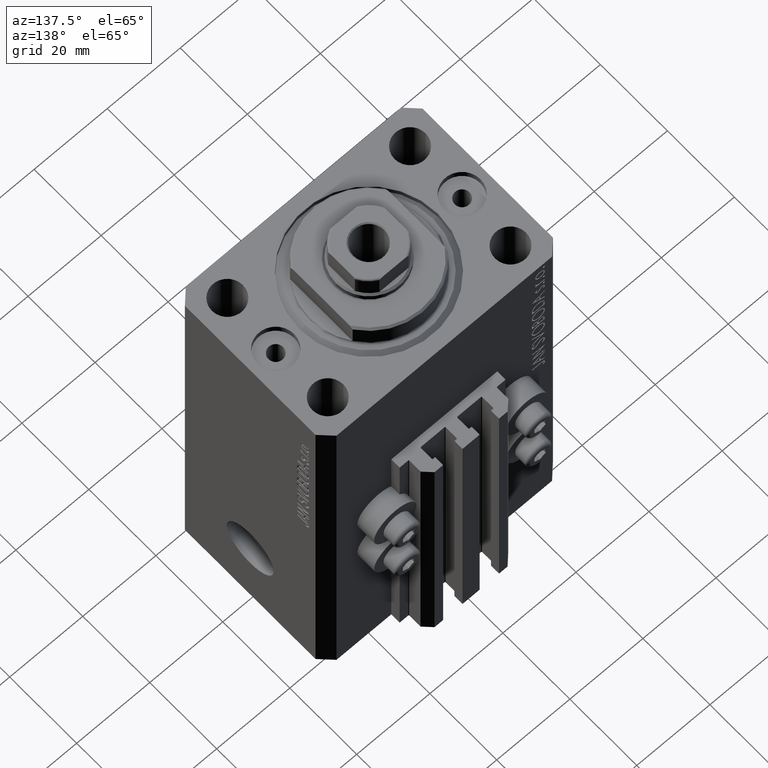
[diagram: clean part render]
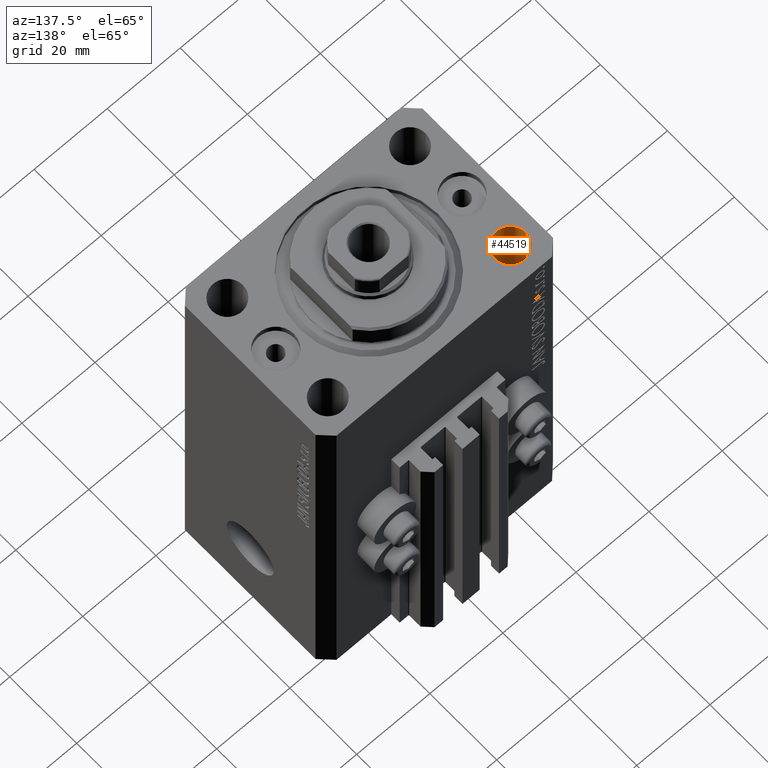
[diagram: same view with one face highlighted and labeled with its STEP entity id]
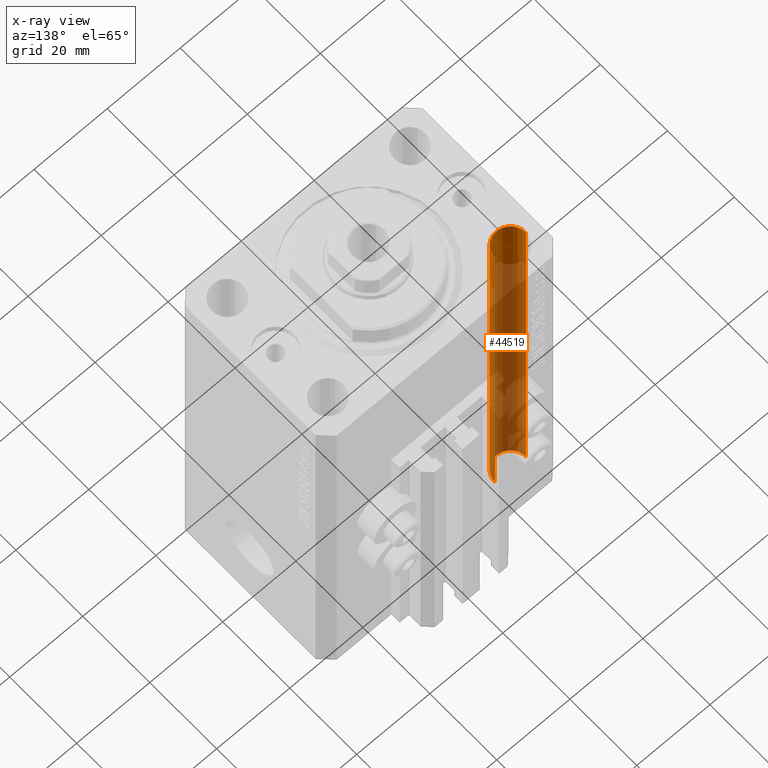
[diagram: x-ray of the same camera — body ghosted, the highlighted face saturated]
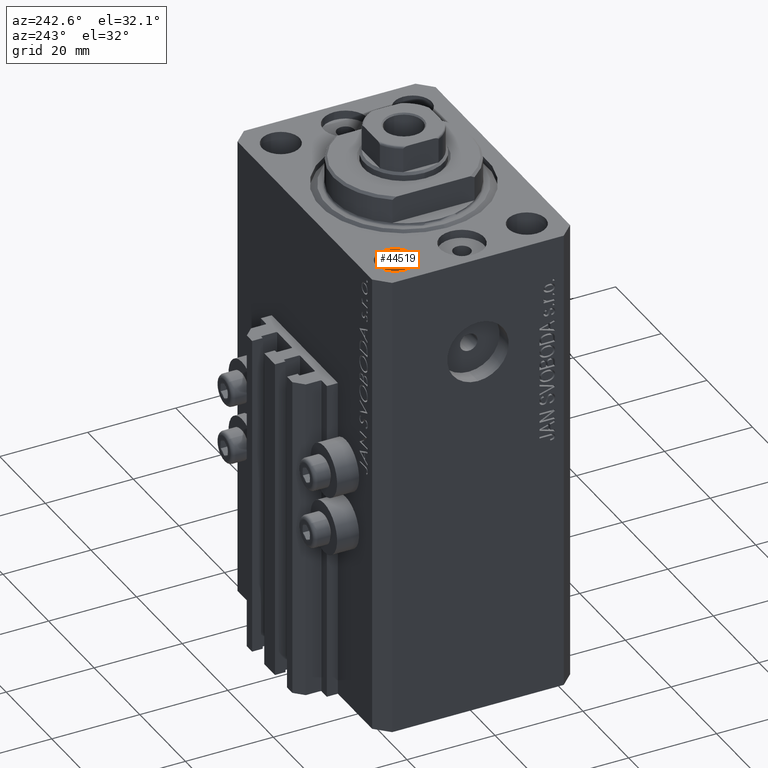
[diagram: same view with one face highlighted and labeled with its STEP entity id]
A machine part, auxiliary view. The second image highlights one B-rep face of the part: STEP entity #44519.
The next image is the same camera in x-ray: the body ghosted, the highlighted face saturated — about 84% of this face is hidden behind the body in this view.
A second angle (auxiliary view) of the same face is appended — the face is thin or edge-on in the first view.
In plain terms, the highlighted cylindrical surface (edge-blend (fillet) strip) has radius 4.25 mm, axis along (0, 0, 1).
Its self-contained STEP definition (entity closure, byte-faithful):
#1006 = EDGE_CURVE ( 'NONE', #34519, #28430, #6546, .T. ) ;
#1084 = CARTESIAN_POINT ( 'NONE',  ( -29.25000000002137668, 14.99999999999999645, 0.000000000000000000 ) ) ;
#2441 = CARTESIAN_POINT ( 'NONE',  ( -20.74999999997862687, 14.99999999999999645, -107.0000000000000000 ) ) ;
#4800 = CARTESIAN_POINT ( 'NONE',  ( -29.25000000002137668, 14.99999999999999645, -107.0000000000000000 ) ) ;
#6546 = CIRCLE ( 'NONE', #33222, 4.250000000021375790 ) ;
#7532 = DIRECTION ( 'NONE',  ( -0.000000000000000000, -0.000000000000000000, 1.000000000000000000 ) ) ;
#9861 = EDGE_CURVE ( 'NONE', #34519, #28473, #20807, .T. ) ;
#11102 = CARTESIAN_POINT ( 'NONE',  ( -29.25000000002137668, 14.99999999999999645, -119.0208152802854897 ) ) ;
#12056 = VECTOR ( 'NONE', #17949, 1000.000000000000000 ) ;
#12828 = DIRECTION ( 'NONE',  ( 1.000000000000000000, 0.000000000000000000, 0.000000000000000000 ) ) ;
#13162 = AXIS2_PLACEMENT_3D ( 'NONE', #17107, #14010, #24732 ) ;
#14010 = DIRECTION ( 'NONE',  ( -0.000000000000000000, -0.000000000000000000, 1.000000000000000000 ) ) ;
#14134 = CARTESIAN_POINT ( 'NONE',  ( -20.74999999997862687, 14.99999999999999645, -119.0208152802854897 ) ) ;
#16451 = CARTESIAN_POINT ( 'NONE',  ( -20.74999999997862687, 14.99999999999999645, 0.000000000000000000 ) ) ;
#17107 = CARTESIAN_POINT ( 'NONE',  ( -25.00000000000000000, 14.99999999999999645, -119.0208152802854897 ) ) ;
#17949 = DIRECTION ( 'NONE',  ( -0.000000000000000000, -0.000000000000000000, 1.000000000000000000 ) ) ;
#20412 = EDGE_CURVE ( 'NONE', #23283, #28473, #39798, .T. ) ;
#20754 = ORIENTED_EDGE ( 'NONE', *, *, #9861, .F. ) ;
#20807 = LINE ( 'NONE', #14134, #12056 ) ;
#20924 = FACE_OUTER_BOUND ( 'NONE', #32849, .T. ) ;
#23283 = VERTEX_POINT ( 'NONE', #1084 ) ;
#24732 = DIRECTION ( 'NONE',  ( 1.000000000000000000, 0.000000000000000000, 0.000000000000000000 ) ) ;
#26266 = ORIENTED_EDGE ( 'NONE', *, *, #38090, .T. ) ;
#27827 = CARTESIAN_POINT ( 'NONE',  ( -25.00000000000000000, 14.99999999999999645, -107.0000000000000000 ) ) ;
#28307 = CYLINDRICAL_SURFACE ( 'NONE', #13162, 4.250000000021375790 ) ;
#28430 = VERTEX_POINT ( 'NONE', #4800 ) ;
#28473 = VERTEX_POINT ( 'NONE', #16451 ) ;
#29172 = DIRECTION ( 'NONE',  ( 1.000000000000000000, 0.000000000000000000, 0.000000000000000000 ) ) ;
#32606 = ORIENTED_EDGE ( 'NONE', *, *, #20412, .T. ) ;
#32849 = EDGE_LOOP ( 'NONE', ( #45574, #26266, #32606, #20754 ) ) ;
#33222 = AXIS2_PLACEMENT_3D ( 'NONE', #27827, #45545, #12828 ) ;
#33482 = CARTESIAN_POINT ( 'NONE',  ( -25.00000000000000000, 14.99999999999999645, 0.000000000000000000 ) ) ;
#34519 = VERTEX_POINT ( 'NONE', #2441 ) ;
#37091 = VECTOR ( 'NONE', #7532, 1000.000000000000000 ) ;
#38090 = EDGE_CURVE ( 'NONE', #28430, #23283, #44055, .T. ) ;
#39798 = CIRCLE ( 'NONE', #45891, 4.250000000021375790 ) ;
#44055 = LINE ( 'NONE', #11102, #37091 ) ;
#44519 = ADVANCED_FACE ( 'NONE', ( #20924 ), #28307, .F. ) ;
#44715 = DIRECTION ( 'NONE',  ( 0.000000000000000000, 0.000000000000000000, 1.000000000000000000 ) ) ;
#45545 = DIRECTION ( 'NONE',  ( -0.000000000000000000, -0.000000000000000000, -1.000000000000000000 ) ) ;
#45574 = ORIENTED_EDGE ( 'NONE', *, *, #1006, .T. ) ;
#45891 = AXIS2_PLACEMENT_3D ( 'NONE', #33482, #44715, #29172 ) ;